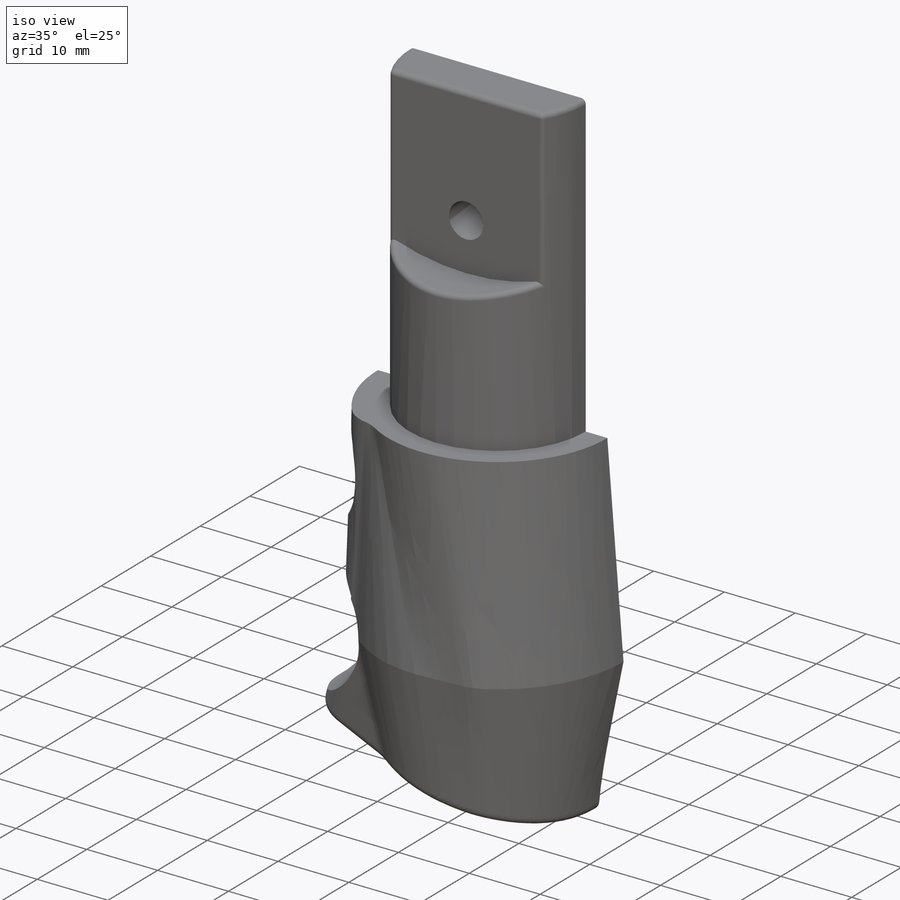
[diagram: iso view]
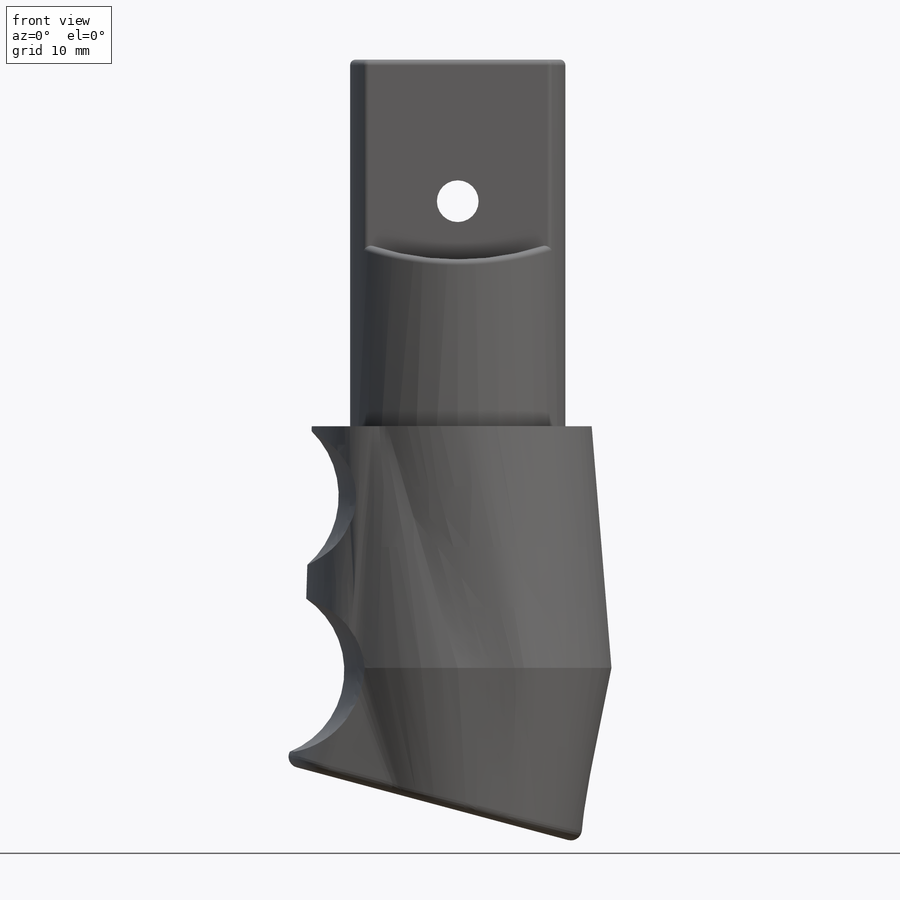
[diagram: front view]
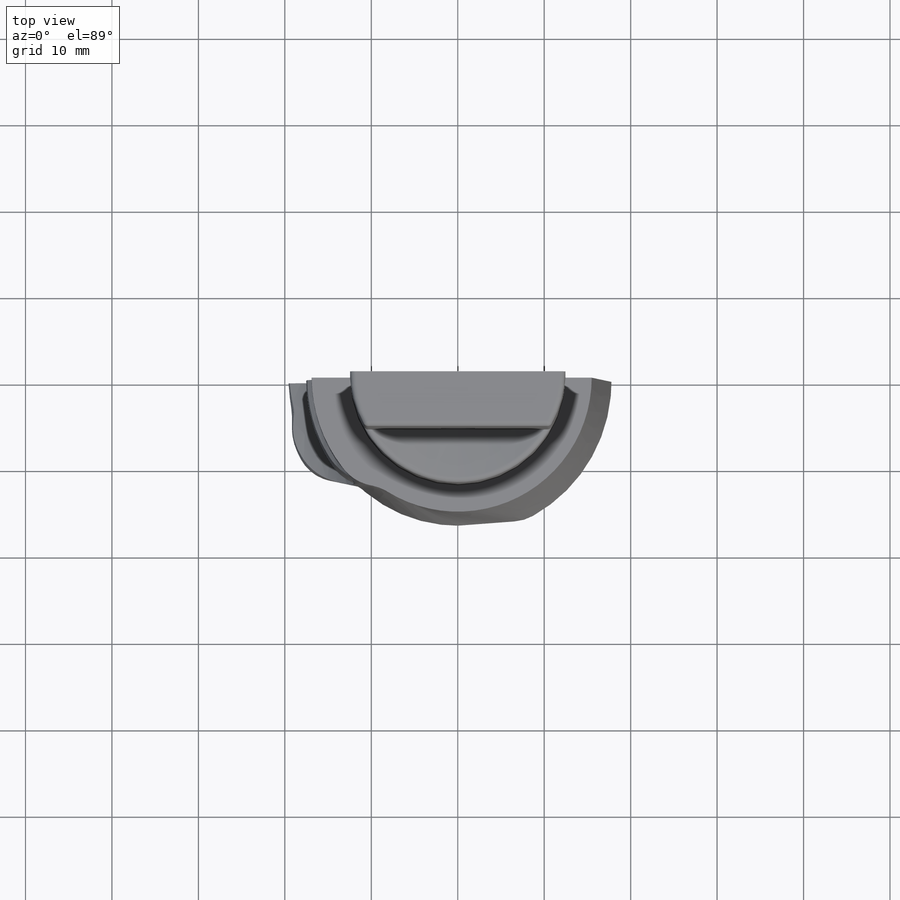
[diagram: top view]
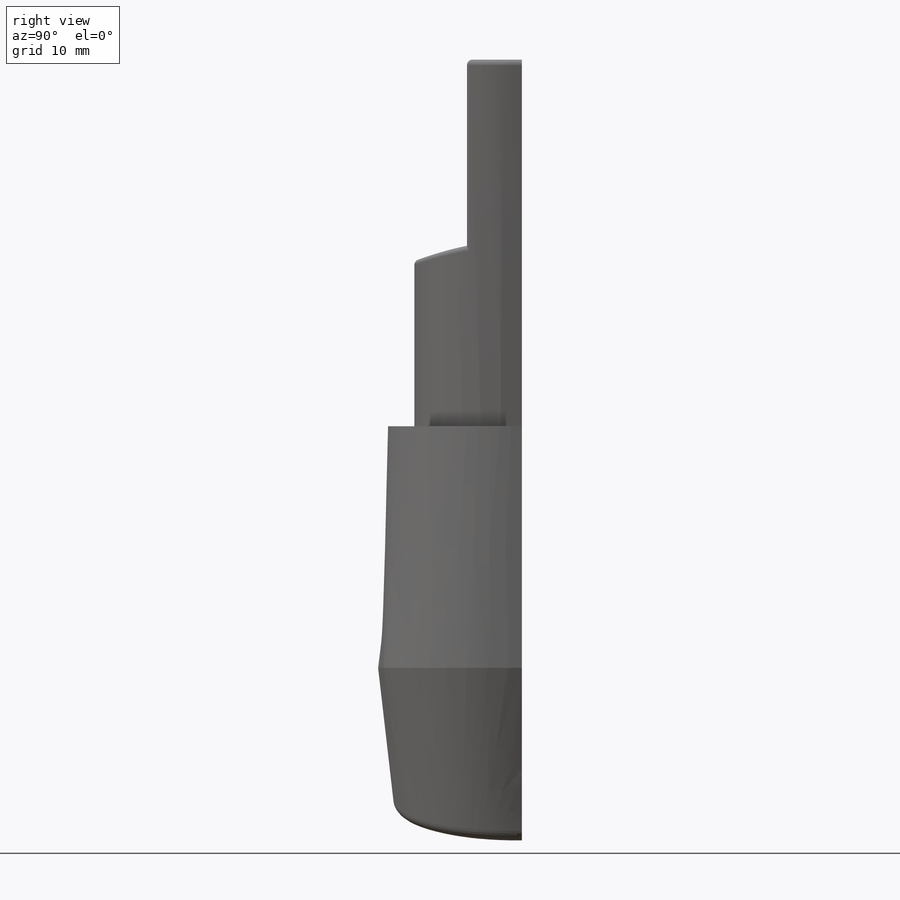
[diagram: right view]
SOLIDWORKS PART (.sldprt)
format: sldprt  version: not decoded by parser v0  size: 557,056 bytes
history: native  units: mm
features: sketch x11, plane x5, cut_extrude x4, fillet x2, material x1, extrude x1, shell x1, cut_revolve x1 (+16 scaffold rows collapsed)
feature tree (42):
  scaffold x16  (default folders/planes/origin — collapsed)
  material  "Material <not specified>"
  sketch  "Sketch1"  dims[D1=24.892mm]
  extrude  "Boss-Extrude1"  Depth=42.418mm
  plane  "Plane1"  Offset=6.35mm
  plane  "Plane2"  Offset=6.35mm
  sketch  "Sketch2"  dims[c1.D2=31.75mm c1.D1=20.574mm c2.D2=2.54mm]
  cut_extrude  "Cut-Extrude2"  [1 undecoded]
  sketch  "Sketch3"  dims[c1.D2=31.75mm c1.D1=20.574mm c2.D2=2.54mm]
  cut_extrude  "Cut-Extrude3"  [1 undecoded]
  sketch  "Sketch4"  dims[D2=4.826mm D1=16.383mm D3=26.035mm]
  cut_extrude  "Cut-Extrude4"  Depth=42.418mm
  sketch  "Sketch5"  dims[D1=30.988mm D2=33.782mm D7=5.08mm D3=12.7mm D4=12.7mm D5=~2.928974mm D6=~2.928974mm]
  plane  "Plane3"  Offset=27.94mm
  sketch  "Sketch6"  dims[c1.D1=33.274mm c1.D2=35.56mm c1.D5=5.08mm c1.D3=~7.010559mm c1.D4=~7.010559mm c2.D3=7.62mm c2.D4=7.62mm]
  plane  "Plane4"  Offset=50.8mm
  sketch  "Sketch9"
  plane  "Plane5"
  sketch  "Sketch11"  dims[c1.D1=29.464mm c1.D3=5.08mm c1.D4=14.732mm c1.D6=5.08mm c1.D2=21.082mm c2.D3=12.065mm c2.D4=~7.801911mm c2.D5=~7.954553mm]
  sketch  "Sketch6<6>"
  fillet  "Fillet3"  Radius=1.27mm
  fillet  "Fillet7"  Radius=0.635mm
  sketch  "Sketch12"  dims[c1.D4=10.541mm c1.D5=10.541mm c1.D1=34.29mm c1.D2=9.525mm c1.D3=9.525mm c2.D4=6.35mm c2.D1=54.61mm c2.D2=15.24mm]
  sketch  "Sketch14"
  cut_extrude  "Cut-Extrude9"  [1 undecoded]
  shell  "Shell1"  Thickness=1.143mm
  cut_revolve  "Cut-Revolve2"  Angle=80deg
decode coverage: 14 of 20 modeling features carry decoded parameters
note: ~ marks probable driven/reference dimensions
note: 3 parameter values undecoded
summary: no parameter record found for 3 features
note: suppression state not decoded; provenance and decode notes live in map.json
